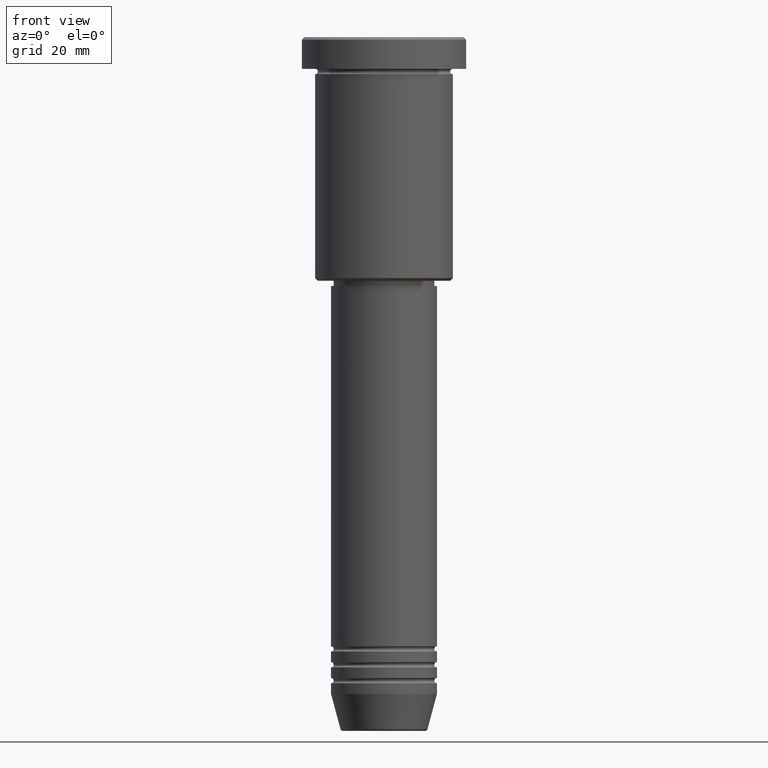
[diagram: clean part render]
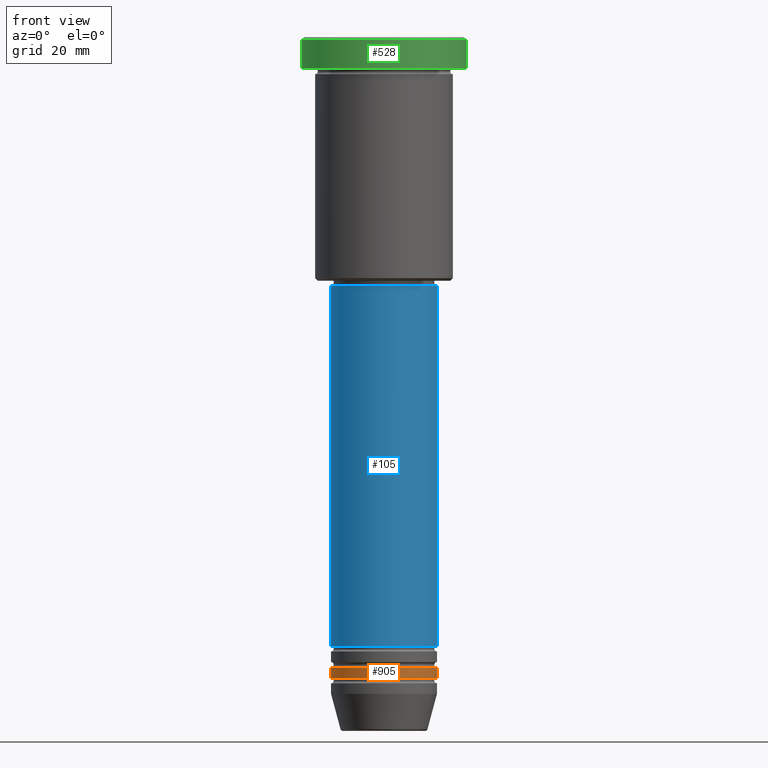
[diagram: same view with three faces highlighted in distinct colors, each labeled with its STEP entity id]
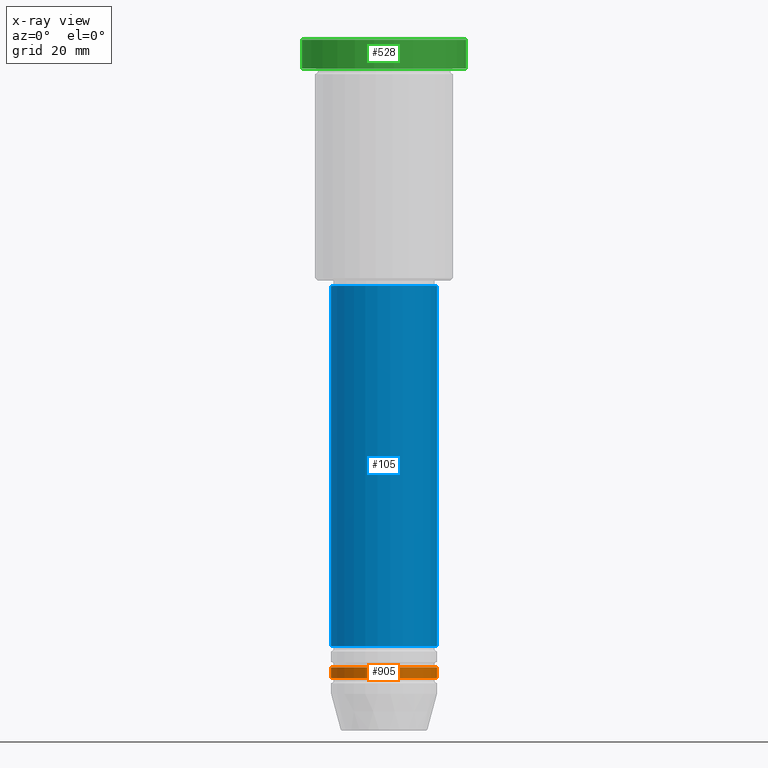
[diagram: x-ray of the same camera — body ghosted, the three highlighted faces saturated]
A machine part, front view with three faces highlighted in distinct colors.
The next image is the same camera in x-ray (body ghosted, the three faces saturated) — at least one of them is partly hidden behind the body in this view.
Their STEP definitions:

[orange] entity #905 — the highlighted cylindrical surface (partial cylindrical patch) has radius 10 mm, axis along (-0, -0, 1).
#50 = EDGE_CURVE ( 'NONE', #699, #536, #963, .T. ) ;
#229 = CARTESIAN_POINT ( 'NONE',  ( -10.00000000000000000, 1.224646799147353256E-15, 0.000000000000000000 ) ) ;
#235 = CARTESIAN_POINT ( 'NONE',  ( 0.000000000000000000, 0.000000000000000000, 0.000000000000000000 ) ) ;
#248 = VERTEX_POINT ( 'NONE', #445 ) ;
#301 = VECTOR ( 'NONE', #509, 1000.000000000000000 ) ;
#413 = CARTESIAN_POINT ( 'NONE',  ( 0.000000000000000000, 0.000000000000000000, -118.9999999999999858 ) ) ;
#420 = FACE_OUTER_BOUND ( 'NONE', #1126, .T. ) ;
#442 = CARTESIAN_POINT ( 'NONE',  ( 0.000000000000000000, 0.000000000000000000, -120.9999999999999716 ) ) ;
#444 = CARTESIAN_POINT ( 'NONE',  ( 10.00000000000000000, 0.000000000000000000, -120.9999999999999716 ) ) ;
#445 = CARTESIAN_POINT ( 'NONE',  ( -10.00000000000000000, 1.224646799147353256E-15, -118.9999999999999858 ) ) ;
#457 = EDGE_CURVE ( 'NONE', #622, #248, #794, .T. ) ;
#482 = VECTOR ( 'NONE', #674, 1000.000000000000000 ) ;
#484 = CIRCLE ( 'NONE', #1154, 10.00000000000000000 ) ;
#486 = DIRECTION ( 'NONE',  ( -0.000000000000000000, -0.000000000000000000, 1.000000000000000000 ) ) ;
#509 = DIRECTION ( 'NONE',  ( -0.000000000000000000, -0.000000000000000000, 1.000000000000000000 ) ) ;
#511 = CARTESIAN_POINT ( 'NONE',  ( 10.00000000000000000, 0.000000000000000000, -118.9999999999999858 ) ) ;
#536 = VERTEX_POINT ( 'NONE', #511 ) ;
#542 = DIRECTION ( 'NONE',  ( -0.000000000000000000, -0.000000000000000000, 1.000000000000000000 ) ) ;
#557 = CIRCLE ( 'NONE', #772, 10.00000000000000000 ) ;
#573 = ORIENTED_EDGE ( 'NONE', *, *, #918, .F. ) ;
#622 = VERTEX_POINT ( 'NONE', #644 ) ;
#644 = CARTESIAN_POINT ( 'NONE',  ( -10.00000000000000000, 1.224646799147353256E-15, -120.9999999999999716 ) ) ;
#674 = DIRECTION ( 'NONE',  ( -0.000000000000000000, -0.000000000000000000, 1.000000000000000000 ) ) ;
#677 = CYLINDRICAL_SURFACE ( 'NONE', #1134, 10.00000000000000000 ) ;
#681 = DIRECTION ( 'NONE',  ( -0.000000000000000000, -0.000000000000000000, 1.000000000000000000 ) ) ;
#699 = VERTEX_POINT ( 'NONE', #444 ) ;
#718 = ORIENTED_EDGE ( 'NONE', *, *, #1124, .T. ) ;
#765 = DIRECTION ( 'NONE',  ( 1.000000000000000000, 0.000000000000000000, 0.000000000000000000 ) ) ;
#772 = AXIS2_PLACEMENT_3D ( 'NONE', #442, #542, #1068 ) ;
#794 = LINE ( 'NONE', #229, #482 ) ;
#886 = CARTESIAN_POINT ( 'NONE',  ( 10.00000000000000000, 0.000000000000000000, 0.000000000000000000 ) ) ;
#905 = ADVANCED_FACE ( 'NONE', ( #420 ), #677, .T. ) ;
#918 = EDGE_CURVE ( 'NONE', #248, #536, #484, .T. ) ;
#963 = LINE ( 'NONE', #886, #301 ) ;
#966 = DIRECTION ( 'NONE',  ( 1.000000000000000000, 0.000000000000000000, 0.000000000000000000 ) ) ;
#1012 = ORIENTED_EDGE ( 'NONE', *, *, #50, .T. ) ;
#1043 = ORIENTED_EDGE ( 'NONE', *, *, #457, .F. ) ;
#1068 = DIRECTION ( 'NONE',  ( 1.000000000000000000, 0.000000000000000000, 0.000000000000000000 ) ) ;
#1124 = EDGE_CURVE ( 'NONE', #622, #699, #557, .T. ) ;
#1126 = EDGE_LOOP ( 'NONE', ( #1043, #718, #1012, #573 ) ) ;
#1134 = AXIS2_PLACEMENT_3D ( 'NONE', #235, #486, #765 ) ;
#1154 = AXIS2_PLACEMENT_3D ( 'NONE', #413, #681, #966 ) ;

[blue] entity #105 — the highlighted cylindrical surface (partial cylindrical patch) has radius 10 mm, axis along (-0, -0, 1).
#6 = AXIS2_PLACEMENT_3D ( 'NONE', #483, #574, #1111 ) ;
#35 = EDGE_CURVE ( 'NONE', #390, #1048, #1130, .T. ) ;
#63 = VECTOR ( 'NONE', #535, 1000.000000000000000 ) ;
#79 = DIRECTION ( 'NONE',  ( -0.000000000000000000, -0.000000000000000000, 1.000000000000000000 ) ) ;
#97 = CARTESIAN_POINT ( 'NONE',  ( 10.00000000000000000, 0.000000000000000000, 0.000000000000000000 ) ) ;
#105 = ADVANCED_FACE ( 'NONE', ( #414 ), #784, .T. ) ;
#142 = ORIENTED_EDGE ( 'NONE', *, *, #1120, .F. ) ;
#154 = DIRECTION ( 'NONE',  ( -0.000000000000000000, -0.000000000000000000, 1.000000000000000000 ) ) ;
#186 = EDGE_CURVE ( 'NONE', #1048, #305, #1097, .T. ) ;
#236 = CARTESIAN_POINT ( 'NONE',  ( 0.000000000000000000, 0.000000000000000000, 0.000000000000000000 ) ) ;
#305 = VERTEX_POINT ( 'NONE', #761 ) ;
#318 = VECTOR ( 'NONE', #79, 1000.000000000000000 ) ;
#356 = EDGE_CURVE ( 'NONE', #934, #305, #540, .T. ) ;
#390 = VERTEX_POINT ( 'NONE', #844 ) ;
#397 = ORIENTED_EDGE ( 'NONE', *, *, #356, .F. ) ;
#414 = FACE_OUTER_BOUND ( 'NONE', #637, .T. ) ;
#483 = CARTESIAN_POINT ( 'NONE',  ( 0.000000000000000000, 0.000000000000000000, -46.99999999999999289 ) ) ;
#524 = DIRECTION ( 'NONE',  ( 1.000000000000000000, 0.000000000000000000, 0.000000000000000000 ) ) ;
#535 = DIRECTION ( 'NONE',  ( -0.000000000000000000, -0.000000000000000000, 1.000000000000000000 ) ) ;
#540 = CIRCLE ( 'NONE', #6, 10.00000000000000000 ) ;
#574 = DIRECTION ( 'NONE',  ( -0.000000000000000000, -0.000000000000000000, 1.000000000000000000 ) ) ;
#580 = AXIS2_PLACEMENT_3D ( 'NONE', #236, #767, #731 ) ;
#624 = CARTESIAN_POINT ( 'NONE',  ( 0.000000000000000000, 0.000000000000000000, -114.9999999999999574 ) ) ;
#637 = EDGE_LOOP ( 'NONE', ( #142, #818, #708, #397 ) ) ;
#686 = AXIS2_PLACEMENT_3D ( 'NONE', #624, #154, #524 ) ;
#708 = ORIENTED_EDGE ( 'NONE', *, *, #186, .T. ) ;
#731 = DIRECTION ( 'NONE',  ( 1.000000000000000000, 0.000000000000000000, 0.000000000000000000 ) ) ;
#761 = CARTESIAN_POINT ( 'NONE',  ( 10.00000000000000000, 0.000000000000000000, -46.99999999999999289 ) ) ;
#767 = DIRECTION ( 'NONE',  ( -0.000000000000000000, -0.000000000000000000, 1.000000000000000000 ) ) ;
#784 = CYLINDRICAL_SURFACE ( 'NONE', #580, 10.00000000000000000 ) ;
#815 = CARTESIAN_POINT ( 'NONE',  ( 10.00000000000000000, 0.000000000000000000, -114.9999999999999574 ) ) ;
#818 = ORIENTED_EDGE ( 'NONE', *, *, #35, .T. ) ;
#844 = CARTESIAN_POINT ( 'NONE',  ( -10.00000000000000000, 1.224646799147353256E-15, -114.9999999999999574 ) ) ;
#934 = VERTEX_POINT ( 'NONE', #1052 ) ;
#992 = CARTESIAN_POINT ( 'NONE',  ( -10.00000000000000000, 1.224646799147353256E-15, 0.000000000000000000 ) ) ;
#996 = LINE ( 'NONE', #992, #63 ) ;
#1048 = VERTEX_POINT ( 'NONE', #815 ) ;
#1052 = CARTESIAN_POINT ( 'NONE',  ( -10.00000000000000000, 1.224646799147353256E-15, -46.99999999999999289 ) ) ;
#1097 = LINE ( 'NONE', #97, #318 ) ;
#1111 = DIRECTION ( 'NONE',  ( 1.000000000000000000, 0.000000000000000000, 0.000000000000000000 ) ) ;
#1120 = EDGE_CURVE ( 'NONE', #390, #934, #996, .T. ) ;
#1130 = CIRCLE ( 'NONE', #686, 10.00000000000000000 ) ;

[green] entity #528 — the highlighted cylindrical surface (partial cylindrical patch) has radius 15.5 mm, axis along (-0, -0, 1).
#38 = CARTESIAN_POINT ( 'NONE',  ( 0.000000000000000000, 0.000000000000000000, -5.999999999999995559 ) ) ;
#160 = CARTESIAN_POINT ( 'NONE',  ( -15.50000000000000000, 1.898202538678397557E-15, -5.999999999999995559 ) ) ;
#165 = EDGE_CURVE ( 'NONE', #829, #570, #909, .T. ) ;
#168 = EDGE_LOOP ( 'NONE', ( #378, #628, #298, #1143 ) ) ;
#183 = CARTESIAN_POINT ( 'NONE',  ( 0.000000000000000000, 0.000000000000000000, -0.4999999999999709677 ) ) ;
#241 = VERTEX_POINT ( 'NONE', #160 ) ;
#242 = EDGE_CURVE ( 'NONE', #241, #570, #994, .T. ) ;
#298 = ORIENTED_EDGE ( 'NONE', *, *, #1125, .T. ) ;
#329 = DIRECTION ( 'NONE',  ( -0.000000000000000000, -0.000000000000000000, 1.000000000000000000 ) ) ;
#378 = ORIENTED_EDGE ( 'NONE', *, *, #242, .F. ) ;
#423 = CIRCLE ( 'NONE', #927, 15.50000000000000000 ) ;
#432 = DIRECTION ( 'NONE',  ( 0.000000000000000000, 0.000000000000000000, -1.000000000000000000 ) ) ;
#481 = CARTESIAN_POINT ( 'NONE',  ( 15.50000000000000000, 0.000000000000000000, -0.4999999999999709677 ) ) ;
#489 = CARTESIAN_POINT ( 'NONE',  ( 0.000000000000000000, 0.000000000000000000, 0.000000000000000000 ) ) ;
#521 = VECTOR ( 'NONE', #999, 1000.000000000000000 ) ;
#528 = ADVANCED_FACE ( 'NONE', ( #611 ), #970, .T. ) ;
#547 = DIRECTION ( 'NONE',  ( 1.000000000000000000, 0.000000000000000000, 0.000000000000000000 ) ) ;
#570 = VERTEX_POINT ( 'NONE', #1137 ) ;
#611 = FACE_OUTER_BOUND ( 'NONE', #168, .T. ) ;
#621 = AXIS2_PLACEMENT_3D ( 'NONE', #489, #1147, #768 ) ;
#628 = ORIENTED_EDGE ( 'NONE', *, *, #971, .T. ) ;
#666 = DIRECTION ( 'NONE',  ( 1.000000000000000000, 0.000000000000000000, 0.000000000000000000 ) ) ;
#715 = CARTESIAN_POINT ( 'NONE',  ( -15.50000000000000000, 1.898202538678397557E-15, 0.000000000000000000 ) ) ;
#768 = DIRECTION ( 'NONE',  ( 1.000000000000000000, 0.000000000000000000, 0.000000000000000000 ) ) ;
#819 = CARTESIAN_POINT ( 'NONE',  ( 15.50000000000000000, 0.000000000000000000, -5.999999999999995559 ) ) ;
#829 = VERTEX_POINT ( 'NONE', #481 ) ;
#878 = DIRECTION ( 'NONE',  ( -0.000000000000000000, -0.000000000000000000, 1.000000000000000000 ) ) ;
#887 = CARTESIAN_POINT ( 'NONE',  ( 15.50000000000000000, 0.000000000000000000, 0.000000000000000000 ) ) ;
#909 = CIRCLE ( 'NONE', #979, 15.50000000000000000 ) ;
#927 = AXIS2_PLACEMENT_3D ( 'NONE', #38, #878, #666 ) ;
#970 = CYLINDRICAL_SURFACE ( 'NONE', #621, 15.50000000000000000 ) ;
#971 = EDGE_CURVE ( 'NONE', #241, #1067, #423, .T. ) ;
#975 = LINE ( 'NONE', #887, #1112 ) ;
#979 = AXIS2_PLACEMENT_3D ( 'NONE', #183, #432, #547 ) ;
#994 = LINE ( 'NONE', #715, #521 ) ;
#999 = DIRECTION ( 'NONE',  ( -0.000000000000000000, -0.000000000000000000, 1.000000000000000000 ) ) ;
#1067 = VERTEX_POINT ( 'NONE', #819 ) ;
#1112 = VECTOR ( 'NONE', #329, 1000.000000000000000 ) ;
#1125 = EDGE_CURVE ( 'NONE', #1067, #829, #975, .T. ) ;
#1137 = CARTESIAN_POINT ( 'NONE',  ( -15.50000000000000000, 1.898202538678397557E-15, -0.4999999999999709677 ) ) ;
#1143 = ORIENTED_EDGE ( 'NONE', *, *, #165, .T. ) ;
#1147 = DIRECTION ( 'NONE',  ( -0.000000000000000000, -0.000000000000000000, 1.000000000000000000 ) ) ;